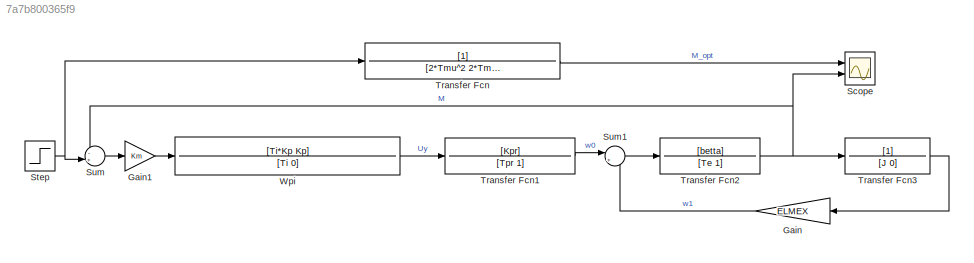
MODEL slx_7a7b800365f9
KIND model
CONFIG AbsTol = auto
CONFIG EnableMultiTasking = off
CONFIG FixedStep = auto
CONFIG MaxStep = 0.0001
CONFIG MinStep = auto
CONFIG RelTol = 1e-3
CONFIG SampleTimeConstraint = Unconstrained
CONFIG SolverName = VariableStepAuto
CONFIG StartTime = 0.0
CONFIG StopTime = 0.02
BLOCK [Gain] Gain
  Gain = ELMEX
  NameLocation = top
BLOCK [Gain] Gain1
  Gain = Km
BLOCK [Scope] Scope
  Floating = off
  NumInputPorts = 2
  Ports = [2]
  ScopeSpecificationString = Simulink.scopes.TimeScopeBlockCfg('CurrentConfiguration', extmgr.ConfigurationSet(extmgr.Configuration('Core','General UI',true),extmgr.Configuration('Core','Source UI',true),extmgr.Configuration('Sources','WiredSimulink',true,'DataLoggingVariableName','ScopeData1'),extmgr.Configuration('Visuals','Time Domain',true,'SerializedDisplays',{struct('MinYLimReal','-0.93366','MaxYLimReal','8.40292','YLab...<+2101ch>
BLOCK [Step] Step
  After = M_zad
  SampleTime = 0
  Time = 0
BLOCK [Sum] Sum
  Inputs = -+|
  Ports = [2, 1]
BLOCK [Sum] Sum1
  Inputs = |+-
  Ports = [2, 1]
BLOCK [TransferFcn] Transfer Fcn
  Denominator = [2*Tmu^2 2*Tmu 1]
BLOCK [TransferFcn] Transfer Fcn1
  Denominator = [Tpr 1]
  Numerator = [Kpr]
BLOCK [TransferFcn] Transfer Fcn2
  Denominator = [Te 1]
  Numerator = [betta]
BLOCK [TransferFcn] Transfer Fcn3
  Denominator = [J 0]
BLOCK [TransferFcn] Wpi
  Denominator = [Ti 0]
  Numerator = [Ti*Kp Kp]
LINE Gain1:1 -> Wpi:1
LINE Gain:1 -> Sum1:2
NET Step:1 -> Sum:2, Transfer Fcn:1
LINE Sum1:1 -> Transfer Fcn2:1
LINE Sum:1 -> Gain1:1
LINE Transfer Fcn1:1 -> Sum1:1
NET Transfer Fcn2:1 -> Scope:2, Sum:1, Transfer Fcn3:1
LINE Transfer Fcn3:1 -> Gain:1
LINE Transfer Fcn:1 -> Scope:1
LINE Wpi:1 -> Transfer Fcn1:1
note: NET lines group one-source signal fan-out (src -> all destinations, sorted); 1:1 wires keep LINE
